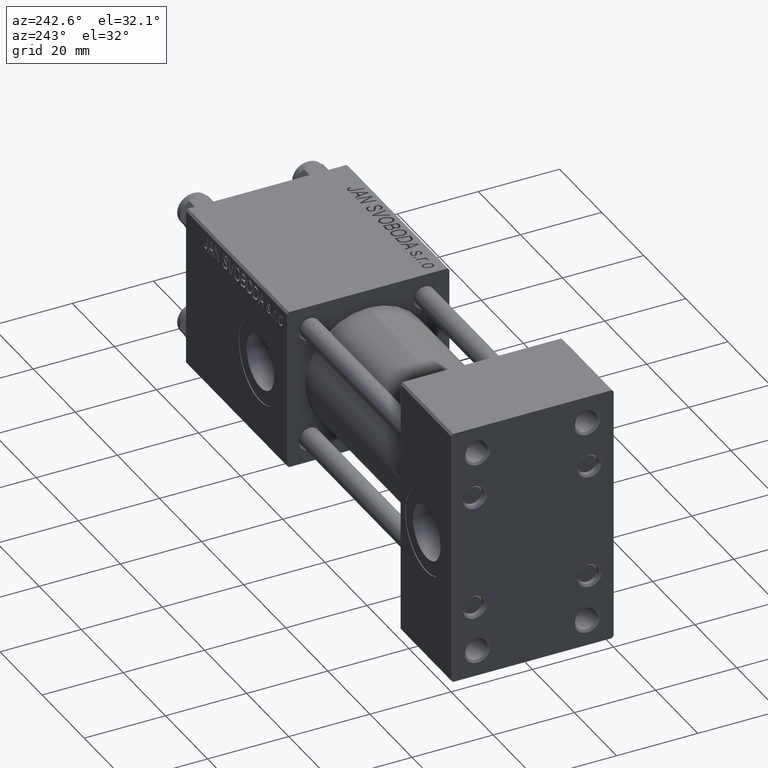
[diagram: clean part render]
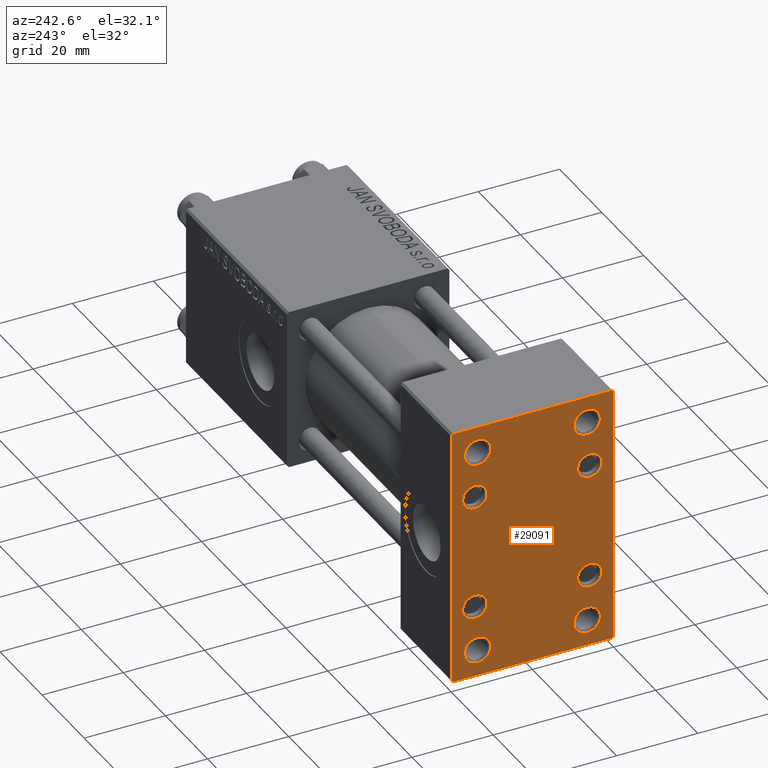
[diagram: same view with one face highlighted and labeled with its STEP entity id]
A machine part, auxiliary view. The second image highlights one B-rep face of the part: STEP entity #29091.
In plain terms, the highlighted planar face has unit normal (-1, 0, 0).
Its self-contained STEP definition (entity closure, byte-faithful):
#44 = ORIENTED_EDGE ( 'NONE', *, *, #38479, .T. ) ;
#73 = DIRECTION ( 'NONE',  ( 0.000000000000000000, 0.000000000000000000, 1.000000000000000000 ) ) ;
#430 = EDGE_CURVE ( 'NONE', #25230, #9843, #25589, .T. ) ;
#486 = FACE_BOUND ( 'NONE', #35339, .T. ) ;
#507 = AXIS2_PLACEMENT_3D ( 'NONE', #39078, #11839, #35290 ) ;
#772 = CARTESIAN_POINT ( 'NONE',  ( 0.000000000000000000, -19.49999999999999645, -31.99999999999999289 ) ) ;
#988 = FACE_BOUND ( 'NONE', #34559, .T. ) ;
#1290 = VERTEX_POINT ( 'NONE', #43215 ) ;
#1696 = CARTESIAN_POINT ( 'NONE',  ( 0.000000000000000000, -13.49999999999999822, -22.24999999999998224 ) ) ;
#1783 = ORIENTED_EDGE ( 'NONE', *, *, #19547, .T. ) ;
#1907 = EDGE_CURVE ( 'NONE', #8774, #12513, #7627, .T. ) ;
#2072 = DIRECTION ( 'NONE',  ( 1.000000000000000000, 0.000000000000000000, 0.000000000000000000 ) ) ;
#2378 = CIRCLE ( 'NONE', #19316, 3.250000000000016875 ) ;
#2866 = DIRECTION ( 'NONE',  ( 0.000000000000000000, 0.000000000000000000, 1.000000000000000000 ) ) ;
#3288 = CIRCLE ( 'NONE', #40323, 3.000000000000004441 ) ;
#3454 = EDGE_CURVE ( 'NONE', #21374, #29983, #47203, .T. ) ;
#3640 = CARTESIAN_POINT ( 'NONE',  ( 0.000000000000000000, -20.00000000000000355, 31.50000000000000711 ) ) ;
#3668 = VERTEX_POINT ( 'NONE', #29511 ) ;
#3725 = ORIENTED_EDGE ( 'NONE', *, *, #40910, .T. ) ;
#4015 = DIRECTION ( 'NONE',  ( 0.000000000000000000, 0.000000000000000000, 1.000000000000000000 ) ) ;
#4276 = FACE_OUTER_BOUND ( 'NONE', #34323, .T. ) ;
#4554 = CARTESIAN_POINT ( 'NONE',  ( 0.000000000000000000, 19.99999999999999645, 32.00000000000000000 ) ) ;
#4557 = DIRECTION ( 'NONE',  ( 0.000000000000000000, -1.000000000000000000, 0.000000000000000000 ) ) ;
#4576 = CIRCLE ( 'NONE', #37614, 3.250000000000016875 ) ;
#4768 = CARTESIAN_POINT ( 'NONE',  ( 0.000000000000000000, 0.000000000000000000, 0.000000000000000000 ) ) ;
#4832 = ORIENTED_EDGE ( 'NONE', *, *, #25151, .T. ) ;
#5068 = VERTEX_POINT ( 'NONE', #32160 ) ;
#5820 = ORIENTED_EDGE ( 'NONE', *, *, #46314, .T. ) ;
#5825 = DIRECTION ( 'NONE',  ( -0.000000000000000000, 0.7071067811865426878, 0.7071067811865524577 ) ) ;
#6157 = CARTESIAN_POINT ( 'NONE',  ( 0.000000000000000000, -20.00000000000000355, 32.00000000000000000 ) ) ;
#6341 = DIRECTION ( 'NONE',  ( 1.000000000000000000, 0.000000000000000000, 0.000000000000000000 ) ) ;
#6974 = EDGE_CURVE ( 'NONE', #1290, #45492, #7804, .T. ) ;
#7335 = DIRECTION ( 'NONE',  ( 1.000000000000000000, 0.000000000000000000, 0.000000000000000000 ) ) ;
#7627 = CIRCLE ( 'NONE', #14082, 3.250000000000016875 ) ;
#7804 = CIRCLE ( 'NONE', #48121, 3.250000000000016875 ) ;
#7925 = LINE ( 'NONE', #15756, #29000 ) ;
#8035 = CARTESIAN_POINT ( 'NONE',  ( 0.000000000000000000, -20.00000000000000355, -31.49999999999997158 ) ) ;
#8069 = CARTESIAN_POINT ( 'NONE',  ( 0.000000000000000000, -13.49999999999999822, 28.75000000000001421 ) ) ;
#8093 = EDGE_CURVE ( 'NONE', #10842, #9527, #45281, .T. ) ;
#8137 = CARTESIAN_POINT ( 'NONE',  ( 0.000000000000000000, -25.75000000000026645, -25.74999999999955591 ) ) ;
#8182 = ORIENTED_EDGE ( 'NONE', *, *, #13172, .T. ) ;
#8303 = DIRECTION ( 'NONE',  ( -0.000000000000000000, 0.000000000000000000, 1.000000000000000000 ) ) ;
#8306 = CARTESIAN_POINT ( 'NONE',  ( 0.000000000000000000, 14.14999999999999858, -17.15000000000000568 ) ) ;
#8311 = ORIENTED_EDGE ( 'NONE', *, *, #35766, .T. ) ;
#8341 = CARTESIAN_POINT ( 'NONE',  ( 0.000000000000000000, 19.99999999999999645, 32.00000000000000000 ) ) ;
#8360 = EDGE_CURVE ( 'NONE', #26677, #13435, #15097, .T. ) ;
#8733 = VERTEX_POINT ( 'NONE', #13049 ) ;
#8774 = VERTEX_POINT ( 'NONE', #1696 ) ;
#8920 = DIRECTION ( 'NONE',  ( 0.000000000000000000, -1.000000000000000000, 0.000000000000000000 ) ) ;
#9042 = FACE_BOUND ( 'NONE', #11150, .T. ) ;
#9112 = CARTESIAN_POINT ( 'NONE',  ( 0.000000000000000000, -14.14999999999999503, -14.15000000000000391 ) ) ;
#9348 = CARTESIAN_POINT ( 'NONE',  ( -0.000000000000000000, -25.75000000000014211, 25.74999999999978684 ) ) ;
#9360 = DIRECTION ( 'NONE',  ( 1.000000000000000000, 0.000000000000000000, 0.000000000000000000 ) ) ;
#9455 = CARTESIAN_POINT ( 'NONE',  ( 0.000000000000000000, 19.99999999999999645, -31.50000000000000000 ) ) ;
#9527 = VERTEX_POINT ( 'NONE', #8035 ) ;
#9843 = VERTEX_POINT ( 'NONE', #21138 ) ;
#10122 = CARTESIAN_POINT ( 'NONE',  ( 0.000000000000000000, -13.49999999999999822, 25.50000000000000000 ) ) ;
#10744 = CARTESIAN_POINT ( 'NONE',  ( 0.000000000000000000, -13.49999999999999822, 25.50000000000000000 ) ) ;
#10779 = ORIENTED_EDGE ( 'NONE', *, *, #48947, .T. ) ;
#10842 = VERTEX_POINT ( 'NONE', #3640 ) ;
#11061 = CARTESIAN_POINT ( 'NONE',  ( 0.000000000000000000, 14.14999999999999858, 14.15000000000000036 ) ) ;
#11150 = EDGE_LOOP ( 'NONE', ( #46972, #28083 ) ) ;
#11653 = ORIENTED_EDGE ( 'NONE', *, *, #8360, .T. ) ;
#11839 = DIRECTION ( 'NONE',  ( 1.000000000000000000, 0.000000000000000000, 0.000000000000000000 ) ) ;
#12420 = DIRECTION ( 'NONE',  ( 0.000000000000000000, -0.7071067811865378028, 0.7071067811865573427 ) ) ;
#12513 = VERTEX_POINT ( 'NONE', #44544 ) ;
#13049 = CARTESIAN_POINT ( 'NONE',  ( 0.000000000000000000, 14.14999999999999858, -11.14999999999999680 ) ) ;
#13172 = EDGE_CURVE ( 'NONE', #8733, #36606, #44987, .T. ) ;
#13205 = LINE ( 'NONE', #17247, #42692 ) ;
#13435 = VERTEX_POINT ( 'NONE', #8069 ) ;
#13760 = EDGE_CURVE ( 'NONE', #29983, #29986, #34516, .T. ) ;
#14082 = AXIS2_PLACEMENT_3D ( 'NONE', #29438, #44836, #23118 ) ;
#14191 = CARTESIAN_POINT ( 'NONE',  ( 0.000000000000000000, -14.14999999999999503, 17.15000000000000924 ) ) ;
#15097 = CIRCLE ( 'NONE', #18328, 3.250000000000016875 ) ;
#15140 = VERTEX_POINT ( 'NONE', #48070 ) ;
#15549 = AXIS2_PLACEMENT_3D ( 'NONE', #47383, #38579, #4015 ) ;
#15756 = CARTESIAN_POINT ( 'NONE',  ( 0.000000000000000000, 19.99999999999999645, -31.99999999999999289 ) ) ;
#15900 = AXIS2_PLACEMENT_3D ( 'NONE', #19500, #30864, #42467 ) ;
#15936 = EDGE_LOOP ( 'NONE', ( #4832, #3725 ) ) ;
#16356 = AXIS2_PLACEMENT_3D ( 'NONE', #4768, #47407, #8303 ) ;
#16659 = VERTEX_POINT ( 'NONE', #44204 ) ;
#16779 = CARTESIAN_POINT ( 'NONE',  ( 0.000000000000000000, 19.49999999999999645, -31.99999999999999289 ) ) ;
#16812 = CIRCLE ( 'NONE', #38589, 3.000000000000000888 ) ;
#17247 = CARTESIAN_POINT ( 'NONE',  ( -0.000000000000000000, 25.75000000000000000, 25.75000000000000000 ) ) ;
#17471 = ORIENTED_EDGE ( 'NONE', *, *, #6974, .T. ) ;
#17538 = DIRECTION ( 'NONE',  ( 0.000000000000000000, 0.000000000000000000, 1.000000000000000000 ) ) ;
#17563 = DIRECTION ( 'NONE',  ( 1.000000000000000000, 0.000000000000000000, 0.000000000000000000 ) ) ;
#17814 = ORIENTED_EDGE ( 'NONE', *, *, #3454, .T. ) ;
#18328 = AXIS2_PLACEMENT_3D ( 'NONE', #10122, #6341, #29559 ) ;
#18384 = DIRECTION ( 'NONE',  ( 1.000000000000000000, 0.000000000000000000, 0.000000000000000000 ) ) ;
#18505 = DIRECTION ( 'NONE',  ( 1.000000000000000000, 0.000000000000000000, 0.000000000000000000 ) ) ;
#18769 = AXIS2_PLACEMENT_3D ( 'NONE', #25028, #2072, #39913 ) ;
#18798 = DIRECTION ( 'NONE',  ( 0.000000000000000000, 0.000000000000000000, 1.000000000000000000 ) ) ;
#19056 = VERTEX_POINT ( 'NONE', #26539 ) ;
#19073 = CIRCLE ( 'NONE', #507, 3.250000000000016875 ) ;
#19120 = EDGE_CURVE ( 'NONE', #5068, #29970, #34841, .T. ) ;
#19288 = ORIENTED_EDGE ( 'NONE', *, *, #47978, .T. ) ;
#19316 = AXIS2_PLACEMENT_3D ( 'NONE', #10744, #17563, #33706 ) ;
#19372 = CARTESIAN_POINT ( 'NONE',  ( 0.000000000000000000, 13.50000000000000178, 25.50000000000000000 ) ) ;
#19495 = CARTESIAN_POINT ( 'NONE',  ( 0.000000000000000000, 14.14999999999999858, -14.15000000000000036 ) ) ;
#19500 = CARTESIAN_POINT ( 'NONE',  ( 0.000000000000000000, 14.14999999999999858, 14.15000000000000036 ) ) ;
#19547 = EDGE_CURVE ( 'NONE', #36606, #8733, #3288, .T. ) ;
#19666 = FACE_BOUND ( 'NONE', #45695, .T. ) ;
#20154 = ORIENTED_EDGE ( 'NONE', *, *, #430, .T. ) ;
#20167 = ORIENTED_EDGE ( 'NONE', *, *, #42171, .T. ) ;
#20197 = VECTOR ( 'NONE', #4557, 1000.000000000000000 ) ;
#21138 = CARTESIAN_POINT ( 'NONE',  ( 0.000000000000000000, 14.14999999999999858, 11.14999999999999858 ) ) ;
#21374 = VERTEX_POINT ( 'NONE', #41559 ) ;
#22800 = CIRCLE ( 'NONE', #18769, 3.000000000000000888 ) ;
#23118 = DIRECTION ( 'NONE',  ( 0.000000000000000000, 0.000000000000000000, 1.000000000000000000 ) ) ;
#24503 = DIRECTION ( 'NONE',  ( 0.000000000000000000, 0.000000000000000000, 1.000000000000000000 ) ) ;
#25028 = CARTESIAN_POINT ( 'NONE',  ( 0.000000000000000000, -14.14999999999999503, 14.15000000000000391 ) ) ;
#25151 = EDGE_CURVE ( 'NONE', #30470, #16659, #22800, .T. ) ;
#25230 = VERTEX_POINT ( 'NONE', #29078 ) ;
#25353 = CARTESIAN_POINT ( 'NONE',  ( 0.000000000000000000, 14.14999999999999858, -14.15000000000000036 ) ) ;
#25589 = CIRCLE ( 'NONE', #15900, 3.000000000000000888 ) ;
#25672 = AXIS2_PLACEMENT_3D ( 'NONE', #9112, #9360, #24503 ) ;
#26539 = CARTESIAN_POINT ( 'NONE',  ( 0.000000000000000000, -14.14999999999999503, -17.15000000000000924 ) ) ;
#26677 = VERTEX_POINT ( 'NONE', #44561 ) ;
#26817 = CARTESIAN_POINT ( 'NONE',  ( 0.000000000000000000, 13.50000000000000178, -25.50000000000000000 ) ) ;
#27304 = DIRECTION ( 'NONE',  ( 1.000000000000000000, 0.000000000000000000, 0.000000000000000000 ) ) ;
#27724 = FACE_BOUND ( 'NONE', #30216, .T. ) ;
#28042 = VECTOR ( 'NONE', #35002, 1000.000000000000000 ) ;
#28083 = ORIENTED_EDGE ( 'NONE', *, *, #40852, .T. ) ;
#28606 = CARTESIAN_POINT ( 'NONE',  ( 0.000000000000000000, 13.50000000000000178, -22.24999999999998224 ) ) ;
#28838 = EDGE_LOOP ( 'NONE', ( #5820, #11653 ) ) ;
#28961 = EDGE_CURVE ( 'NONE', #42982, #9527, #42723, .T. ) ;
#29000 = VECTOR ( 'NONE', #8920, 1000.000000000000000 ) ;
#29078 = CARTESIAN_POINT ( 'NONE',  ( 0.000000000000000000, 14.14999999999999858, 17.15000000000000568 ) ) ;
#29091 = ADVANCED_FACE ( 'NONE', ( #27724, #32010, #35295, #988, #39332, #9042, #19666, #486, #4276 ), #43129, .T. ) ;
#29284 = ORIENTED_EDGE ( 'NONE', *, *, #8093, .F. ) ;
#29438 = CARTESIAN_POINT ( 'NONE',  ( 0.000000000000000000, -13.49999999999999822, -25.50000000000000000 ) ) ;
#29511 = CARTESIAN_POINT ( 'NONE',  ( 0.000000000000000000, -14.14999999999999503, -11.15000000000000036 ) ) ;
#29559 = DIRECTION ( 'NONE',  ( 0.000000000000000000, 0.000000000000000000, 1.000000000000000000 ) ) ;
#29606 = VECTOR ( 'NONE', #29627, 1000.000000000000000 ) ;
#29627 = DIRECTION ( 'NONE',  ( 0.000000000000000000, 0.000000000000000000, -1.000000000000000000 ) ) ;
#29659 = EDGE_CURVE ( 'NONE', #3668, #19056, #37299, .T. ) ;
#29762 = CIRCLE ( 'NONE', #30561, 3.000000000000000888 ) ;
#29970 = VERTEX_POINT ( 'NONE', #43050 ) ;
#29983 = VERTEX_POINT ( 'NONE', #9455 ) ;
#29986 = VERTEX_POINT ( 'NONE', #16779 ) ;
#30216 = EDGE_LOOP ( 'NONE', ( #30542, #17471 ) ) ;
#30300 = CARTESIAN_POINT ( 'NONE',  ( 0.000000000000000000, -14.14999999999999503, 14.15000000000000391 ) ) ;
#30470 = VERTEX_POINT ( 'NONE', #14191 ) ;
#30541 = DIRECTION ( 'NONE',  ( 0.000000000000000000, 0.000000000000000000, 1.000000000000000000 ) ) ;
#30542 = ORIENTED_EDGE ( 'NONE', *, *, #36864, .T. ) ;
#30561 = AXIS2_PLACEMENT_3D ( 'NONE', #11061, #18384, #37314 ) ;
#30864 = DIRECTION ( 'NONE',  ( 1.000000000000000000, 0.000000000000000000, 0.000000000000000000 ) ) ;
#31025 = CARTESIAN_POINT ( 'NONE',  ( 0.000000000000000000, 13.50000000000000178, -25.50000000000000000 ) ) ;
#32010 = FACE_BOUND ( 'NONE', #28838, .T. ) ;
#32160 = CARTESIAN_POINT ( 'NONE',  ( 0.000000000000000000, 19.49999999999999645, 32.00000000000000000 ) ) ;
#33609 = EDGE_LOOP ( 'NONE', ( #40876, #8311 ) ) ;
#33706 = DIRECTION ( 'NONE',  ( 0.000000000000000000, 0.000000000000000000, 1.000000000000000000 ) ) ;
#34258 = DIRECTION ( 'NONE',  ( 1.000000000000000000, 0.000000000000000000, 0.000000000000000000 ) ) ;
#34323 = EDGE_LOOP ( 'NONE', ( #17814, #46282, #48721, #46287, #29284, #38530, #49276, #19288 ) ) ;
#34516 = LINE ( 'NONE', #41859, #28042 ) ;
#34559 = EDGE_LOOP ( 'NONE', ( #10779, #44 ) ) ;
#34841 = LINE ( 'NONE', #8341, #20197 ) ;
#34870 = VECTOR ( 'NONE', #12420, 1000.000000000000000 ) ;
#35002 = DIRECTION ( 'NONE',  ( -0.000000000000000000, -0.7071067811865524577, -0.7071067811865426878 ) ) ;
#35290 = DIRECTION ( 'NONE',  ( 0.000000000000000000, 0.000000000000000000, 1.000000000000000000 ) ) ;
#35295 = FACE_BOUND ( 'NONE', #33609, .T. ) ;
#35339 = EDGE_LOOP ( 'NONE', ( #20154, #20167 ) ) ;
#35538 = DIRECTION ( 'NONE',  ( 1.000000000000000000, 0.000000000000000000, 0.000000000000000000 ) ) ;
#35766 = EDGE_CURVE ( 'NONE', #12513, #8774, #19073, .T. ) ;
#36606 = VERTEX_POINT ( 'NONE', #8306 ) ;
#36864 = EDGE_CURVE ( 'NONE', #45492, #1290, #4576, .T. ) ;
#37299 = CIRCLE ( 'NONE', #15549, 3.000000000000004441 ) ;
#37314 = DIRECTION ( 'NONE',  ( 0.000000000000000000, 0.000000000000000000, 1.000000000000000000 ) ) ;
#37614 = AXIS2_PLACEMENT_3D ( 'NONE', #19372, #34258, #45387 ) ;
#38479 = EDGE_CURVE ( 'NONE', #15140, #48902, #48931, .T. ) ;
#38530 = ORIENTED_EDGE ( 'NONE', *, *, #43938, .T. ) ;
#38579 = DIRECTION ( 'NONE',  ( 1.000000000000000000, 0.000000000000000000, 0.000000000000000000 ) ) ;
#38589 = AXIS2_PLACEMENT_3D ( 'NONE', #30300, #7335, #48727 ) ;
#39078 = CARTESIAN_POINT ( 'NONE',  ( 0.000000000000000000, -13.49999999999999822, -25.50000000000000000 ) ) ;
#39313 = AXIS2_PLACEMENT_3D ( 'NONE', #19495, #27304, #73 ) ;
#39332 = FACE_BOUND ( 'NONE', #15936, .T. ) ;
#39373 = DIRECTION ( 'NONE',  ( 0.000000000000000000, 0.000000000000000000, -1.000000000000000000 ) ) ;
#39509 = AXIS2_PLACEMENT_3D ( 'NONE', #26817, #18505, #2866 ) ;
#39913 = DIRECTION ( 'NONE',  ( 0.000000000000000000, 0.000000000000000000, 1.000000000000000000 ) ) ;
#40323 = AXIS2_PLACEMENT_3D ( 'NONE', #25353, #44302, #17538 ) ;
#40852 = EDGE_CURVE ( 'NONE', #19056, #3668, #49044, .T. ) ;
#40876 = ORIENTED_EDGE ( 'NONE', *, *, #1907, .T. ) ;
#40910 = EDGE_CURVE ( 'NONE', #16659, #30470, #16812, .T. ) ;
#41559 = CARTESIAN_POINT ( 'NONE',  ( 0.000000000000000000, 19.99999999999999645, 31.50000000000000000 ) ) ;
#41859 = CARTESIAN_POINT ( 'NONE',  ( -0.000000000000000000, 25.74999999999986144, -25.75000000000021672 ) ) ;
#42171 = EDGE_CURVE ( 'NONE', #9843, #25230, #29762, .T. ) ;
#42467 = DIRECTION ( 'NONE',  ( 0.000000000000000000, 0.000000000000000000, 1.000000000000000000 ) ) ;
#42692 = VECTOR ( 'NONE', #43998, 1000.000000000000114 ) ;
#42723 = LINE ( 'NONE', #8137, #34870 ) ;
#42982 = VERTEX_POINT ( 'NONE', #772 ) ;
#43050 = CARTESIAN_POINT ( 'NONE',  ( 0.000000000000000000, -19.50000000000001776, 32.00000000000000000 ) ) ;
#43129 = PLANE ( 'NONE',  #16356 ) ;
#43215 = CARTESIAN_POINT ( 'NONE',  ( 0.000000000000000000, 13.50000000000000178, 22.24999999999998224 ) ) ;
#43305 = AXIS2_PLACEMENT_3D ( 'NONE', #31025, #35538, #30541 ) ;
#43556 = CIRCLE ( 'NONE', #39509, 3.250000000000016875 ) ;
#43932 = LINE ( 'NONE', #9348, #49876 ) ;
#43938 = EDGE_CURVE ( 'NONE', #10842, #29970, #43932, .T. ) ;
#43998 = DIRECTION ( 'NONE',  ( 0.000000000000000000, 0.7071067811865474617, -0.7071067811865474617 ) ) ;
#44204 = CARTESIAN_POINT ( 'NONE',  ( 0.000000000000000000, -14.14999999999999503, 11.15000000000000213 ) ) ;
#44302 = DIRECTION ( 'NONE',  ( 1.000000000000000000, 0.000000000000000000, 0.000000000000000000 ) ) ;
#44544 = CARTESIAN_POINT ( 'NONE',  ( 0.000000000000000000, -13.49999999999999822, -28.75000000000001421 ) ) ;
#44561 = CARTESIAN_POINT ( 'NONE',  ( 0.000000000000000000, -13.49999999999999822, 22.24999999999998224 ) ) ;
#44816 = CARTESIAN_POINT ( 'NONE',  ( 0.000000000000000000, 13.50000000000000178, 28.75000000000001421 ) ) ;
#44836 = DIRECTION ( 'NONE',  ( 1.000000000000000000, 0.000000000000000000, 0.000000000000000000 ) ) ;
#44987 = CIRCLE ( 'NONE', #39313, 3.000000000000004441 ) ;
#45281 = LINE ( 'NONE', #6157, #29606 ) ;
#45298 = CARTESIAN_POINT ( 'NONE',  ( 0.000000000000000000, 13.50000000000000178, 25.50000000000000000 ) ) ;
#45387 = DIRECTION ( 'NONE',  ( 0.000000000000000000, 0.000000000000000000, 1.000000000000000000 ) ) ;
#45492 = VERTEX_POINT ( 'NONE', #44816 ) ;
#45695 = EDGE_LOOP ( 'NONE', ( #8182, #1783 ) ) ;
#46282 = ORIENTED_EDGE ( 'NONE', *, *, #13760, .T. ) ;
#46287 = ORIENTED_EDGE ( 'NONE', *, *, #28961, .T. ) ;
#46314 = EDGE_CURVE ( 'NONE', #13435, #26677, #2378, .T. ) ;
#46972 = ORIENTED_EDGE ( 'NONE', *, *, #29659, .T. ) ;
#47183 = VECTOR ( 'NONE', #39373, 1000.000000000000000 ) ;
#47203 = LINE ( 'NONE', #4554, #47183 ) ;
#47383 = CARTESIAN_POINT ( 'NONE',  ( 0.000000000000000000, -14.14999999999999503, -14.15000000000000391 ) ) ;
#47407 = DIRECTION ( 'NONE',  ( -1.000000000000000000, 0.000000000000000000, -0.000000000000000000 ) ) ;
#47930 = EDGE_CURVE ( 'NONE', #29986, #42982, #7925, .T. ) ;
#47978 = EDGE_CURVE ( 'NONE', #5068, #21374, #13205, .T. ) ;
#48070 = CARTESIAN_POINT ( 'NONE',  ( 0.000000000000000000, 13.50000000000000178, -28.75000000000001421 ) ) ;
#48121 = AXIS2_PLACEMENT_3D ( 'NONE', #45298, #49835, #18798 ) ;
#48721 = ORIENTED_EDGE ( 'NONE', *, *, #47930, .T. ) ;
#48727 = DIRECTION ( 'NONE',  ( 0.000000000000000000, 0.000000000000000000, 1.000000000000000000 ) ) ;
#48902 = VERTEX_POINT ( 'NONE', #28606 ) ;
#48931 = CIRCLE ( 'NONE', #43305, 3.250000000000016875 ) ;
#48947 = EDGE_CURVE ( 'NONE', #48902, #15140, #43556, .T. ) ;
#49044 = CIRCLE ( 'NONE', #25672, 3.000000000000004441 ) ;
#49276 = ORIENTED_EDGE ( 'NONE', *, *, #19120, .F. ) ;
#49835 = DIRECTION ( 'NONE',  ( 1.000000000000000000, 0.000000000000000000, 0.000000000000000000 ) ) ;
#49876 = VECTOR ( 'NONE', #5825, 1000.000000000000000 ) ;